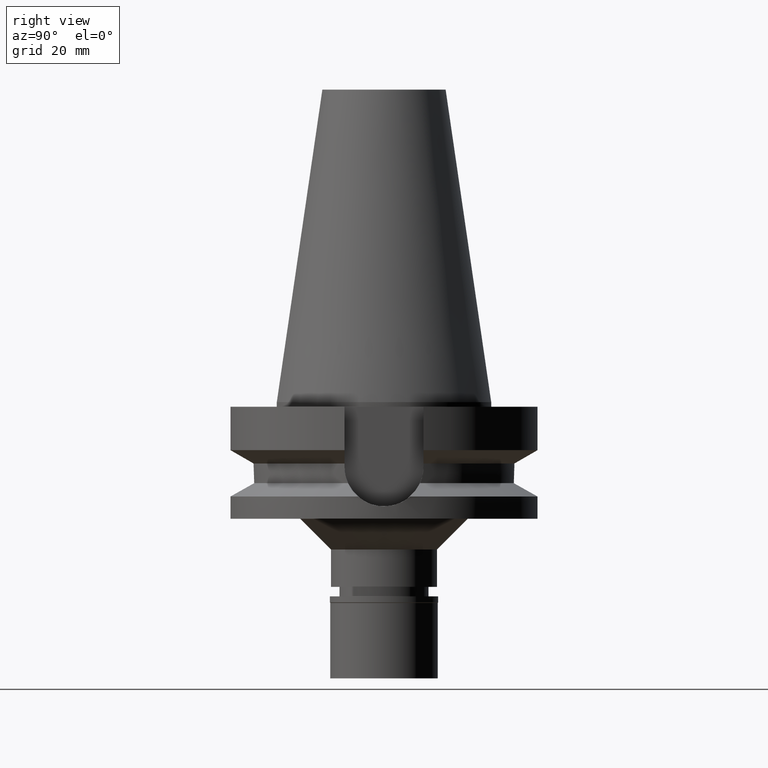
[diagram: clean part render]
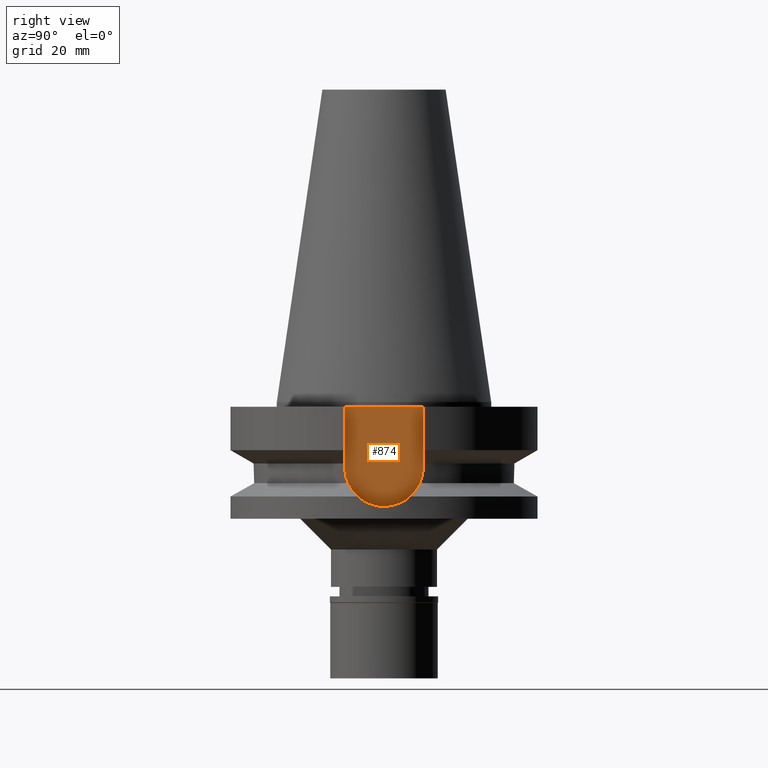
[diagram: same view with one face highlighted and labeled with its STEP entity id]
A machine part, right view. The second image highlights one B-rep face of the part: STEP entity #874.
In plain terms, the highlighted planar face has unit normal (1, 0, 0).
Its self-contained STEP definition (entity closure, byte-faithful):
#143 = PLANE ( 'NONE',  #2552 ) ;
#159 = AXIS2_PLACEMENT_3D ( 'NONE', #2764, #1108, #607 ) ;
#199 = LINE ( 'NONE', #3049, #794 ) ;
#275 = VERTEX_POINT ( 'NONE', #525 ) ;
#323 = CARTESIAN_POINT ( 'NONE',  ( 35.39999999999999858, 12.84999999999999964, -1.500000000000000000 ) ) ;
#451 = ORIENTED_EDGE ( 'NONE', *, *, #1790, .F. ) ;
#525 = CARTESIAN_POINT ( 'NONE',  ( 35.39999999999999858, 12.84999999999999964, -1.500000000000000000 ) ) ;
#590 = EDGE_CURVE ( 'NONE', #275, #1929, #1957, .T. ) ;
#594 = VECTOR ( 'NONE', #1511, 1000.000000000000000 ) ;
#607 = DIRECTION ( 'NONE',  ( 0.0000000000000000000, 1.000000000000000000, 0.0000000000000000000 ) ) ;
#685 = EDGE_LOOP ( 'NONE', ( #2870, #451, #1735, #2668 ) ) ;
#727 = EDGE_CURVE ( 'NONE', #275, #1956, #2463, .T. ) ;
#755 = DIRECTION ( 'NONE',  ( 0.0000000000000000000, -1.000000000000000000, 0.0000000000000000000 ) ) ;
#794 = VECTOR ( 'NONE', #2301, 1000.000000000000000 ) ;
#818 = FACE_OUTER_BOUND ( 'NONE', #685, .T. ) ;
#847 = VECTOR ( 'NONE', #755, 1000.000000000000000 ) ;
#874 = ADVANCED_FACE ( 'NONE', ( #818 ), #143, .T. ) ;
#998 = CARTESIAN_POINT ( 'NONE',  ( 35.39999999999999858, -12.84999999999999964, -21.14999999999999858 ) ) ;
#1032 = CARTESIAN_POINT ( 'NONE',  ( 35.39999999999999858, 12.84999999999999964, -1.500000000000000000 ) ) ;
#1069 = DIRECTION ( 'NONE',  ( 0.0000000000000000000, 1.000000000000000000, 0.0000000000000000000 ) ) ;
#1108 = DIRECTION ( 'NONE',  ( -1.000000000000000000, 0.0000000000000000000, 0.0000000000000000000 ) ) ;
#1180 = CARTESIAN_POINT ( 'NONE',  ( 35.39999999999999858, 12.84999999999999964, -21.14999999999999858 ) ) ;
#1511 = DIRECTION ( 'NONE',  ( 0.0000000000000000000, 0.0000000000000000000, -1.000000000000000000 ) ) ;
#1523 = CARTESIAN_POINT ( 'NONE',  ( 35.39999999999999858, 0.0000000000000000000, 0.0000000000000000000 ) ) ;
#1597 = VERTEX_POINT ( 'NONE', #998 ) ;
#1735 = ORIENTED_EDGE ( 'NONE', *, *, #727, .F. ) ;
#1790 = EDGE_CURVE ( 'NONE', #1956, #1597, #2707, .T. ) ;
#1885 = CARTESIAN_POINT ( 'NONE',  ( 35.39999999999999858, -12.84999999999999964, -1.500000000000000000 ) ) ;
#1886 = EDGE_CURVE ( 'NONE', #1597, #1929, #199, .T. ) ;
#1929 = VERTEX_POINT ( 'NONE', #1885 ) ;
#1956 = VERTEX_POINT ( 'NONE', #1180 ) ;
#1957 = LINE ( 'NONE', #1032, #847 ) ;
#2228 = DIRECTION ( 'NONE',  ( 1.000000000000000000, 0.0000000000000000000, 0.0000000000000000000 ) ) ;
#2301 = DIRECTION ( 'NONE',  ( 0.0000000000000000000, 0.0000000000000000000, 1.000000000000000000 ) ) ;
#2463 = LINE ( 'NONE', #323, #594 ) ;
#2552 = AXIS2_PLACEMENT_3D ( 'NONE', #1523, #2228, #1069 ) ;
#2668 = ORIENTED_EDGE ( 'NONE', *, *, #590, .T. ) ;
#2707 = CIRCLE ( 'NONE', #159, 12.84999999999999964 ) ;
#2764 = CARTESIAN_POINT ( 'NONE',  ( 35.39999999999999858, 0.0000000000000000000, -21.14999999999999858 ) ) ;
#2870 = ORIENTED_EDGE ( 'NONE', *, *, #1886, .F. ) ;
#3049 = CARTESIAN_POINT ( 'NONE',  ( 35.39999999999999858, -12.84999999999999964, -21.14999999999999858 ) ) ;